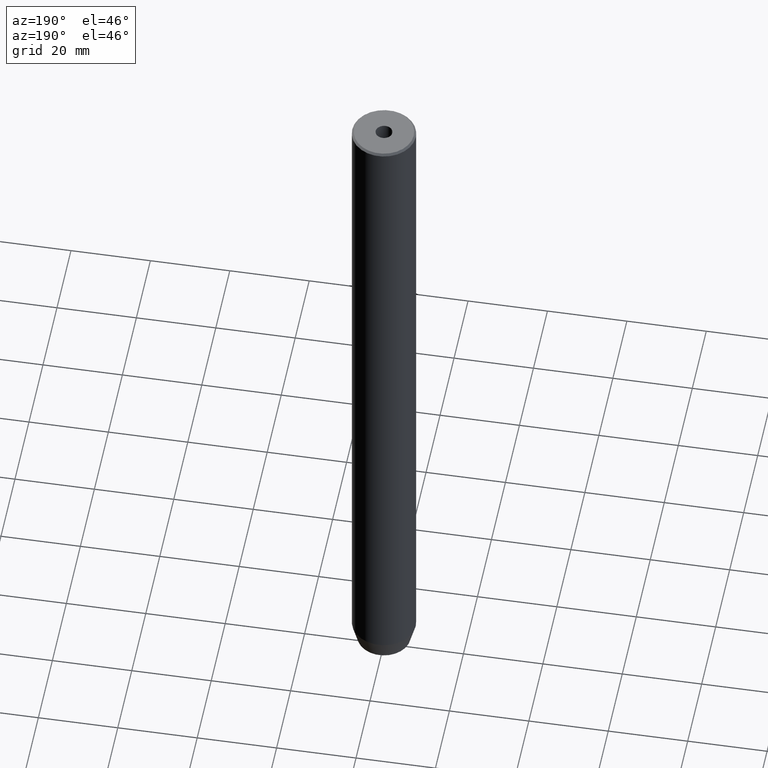
[diagram: clean part render]
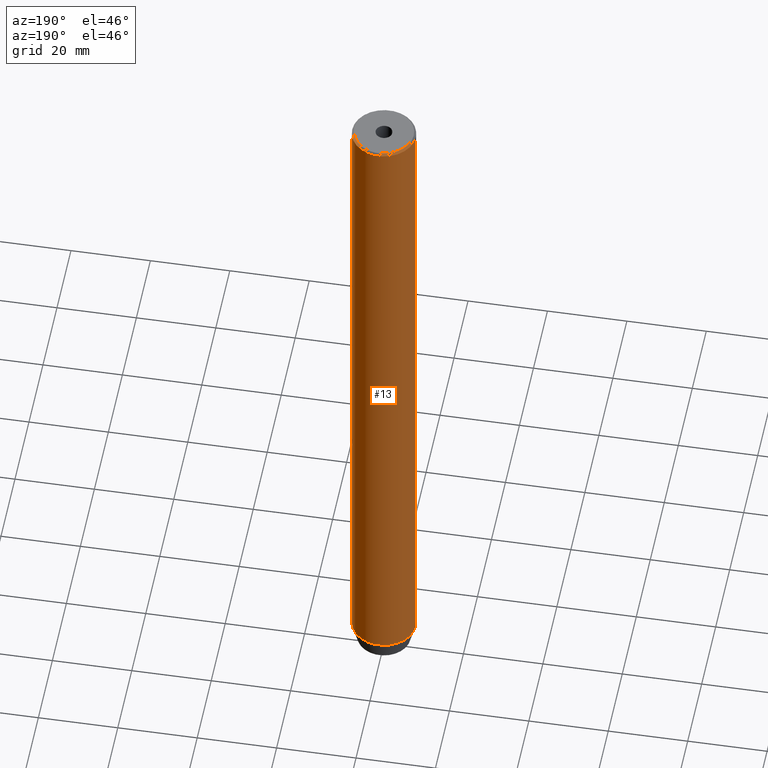
[diagram: same view with one face highlighted and labeled with its STEP entity id]
A machine part, auxiliary view. The second image highlights one B-rep face of the part: STEP entity #13.
In plain terms, the highlighted cylindrical surface (edge-blend (fillet) strip) has radius 8 mm, axis along (-0, -0, 1).
Its self-contained STEP definition (entity closure, byte-faithful):
#13 = ADVANCED_FACE ( 'NONE', ( #355 ), #20, .T. ) ;
#20 = CYLINDRICAL_SURFACE ( 'NONE', #223, 8.000000000000000000 ) ;
#55 = EDGE_CURVE ( 'NONE', #407, #511, #231, .T. ) ;
#70 = DIRECTION ( 'NONE',  ( 1.000000000000000000, 0.000000000000000000, 0.000000000000000000 ) ) ;
#74 = CARTESIAN_POINT ( 'NONE',  ( 0.000000000000000000, 0.000000000000000000, -0.4999999999999657496 ) ) ;
#109 = DIRECTION ( 'NONE',  ( 1.000000000000000000, 0.000000000000000000, 0.000000000000000000 ) ) ;
#139 = EDGE_CURVE ( 'NONE', #319, #547, #470, .T. ) ;
#162 = VECTOR ( 'NONE', #268, 1000.000000000000000 ) ;
#166 = CARTESIAN_POINT ( 'NONE',  ( 8.000000000000000000, 0.000000000000000000, 0.000000000000000000 ) ) ;
#171 = AXIS2_PLACEMENT_3D ( 'NONE', #74, #194, #202 ) ;
#187 = DIRECTION ( 'NONE',  ( -0.000000000000000000, -0.000000000000000000, 1.000000000000000000 ) ) ;
#194 = DIRECTION ( 'NONE',  ( 0.000000000000000000, 0.000000000000000000, -1.000000000000000000 ) ) ;
#202 = DIRECTION ( 'NONE',  ( 1.000000000000000000, 0.000000000000000000, 0.000000000000000000 ) ) ;
#223 = AXIS2_PLACEMENT_3D ( 'NONE', #282, #187, #109 ) ;
#224 = EDGE_CURVE ( 'NONE', #547, #407, #347, .T. ) ;
#231 = CIRCLE ( 'NONE', #171, 8.000000000000000000 ) ;
#242 = CARTESIAN_POINT ( 'NONE',  ( 8.000000000000000000, 0.000000000000000000, -0.4999999999999657496 ) ) ;
#267 = EDGE_CURVE ( 'NONE', #319, #511, #573, .T. ) ;
#268 = DIRECTION ( 'NONE',  ( -0.000000000000000000, -0.000000000000000000, 1.000000000000000000 ) ) ;
#273 = VECTOR ( 'NONE', #349, 1000.000000000000000 ) ;
#282 = CARTESIAN_POINT ( 'NONE',  ( 0.000000000000000000, 0.000000000000000000, 0.000000000000000000 ) ) ;
#318 = AXIS2_PLACEMENT_3D ( 'NONE', #457, #423, #70 ) ;
#319 = VERTEX_POINT ( 'NONE', #359 ) ;
#330 = ORIENTED_EDGE ( 'NONE', *, *, #267, .F. ) ;
#335 = CARTESIAN_POINT ( 'NONE',  ( -8.000000000000000000, 9.797174393178825657E-16, -175.0000000000000000 ) ) ;
#347 = LINE ( 'NONE', #435, #273 ) ;
#349 = DIRECTION ( 'NONE',  ( -0.000000000000000000, -0.000000000000000000, 1.000000000000000000 ) ) ;
#355 = FACE_OUTER_BOUND ( 'NONE', #518, .T. ) ;
#359 = CARTESIAN_POINT ( 'NONE',  ( 8.000000000000000000, 0.000000000000000000, -175.0000000000000000 ) ) ;
#361 = ORIENTED_EDGE ( 'NONE', *, *, #55, .T. ) ;
#363 = CARTESIAN_POINT ( 'NONE',  ( -8.000000000000000000, 9.797174393178825657E-16, -0.4999999999999657496 ) ) ;
#375 = ORIENTED_EDGE ( 'NONE', *, *, #224, .T. ) ;
#407 = VERTEX_POINT ( 'NONE', #363 ) ;
#423 = DIRECTION ( 'NONE',  ( -0.000000000000000000, -0.000000000000000000, 1.000000000000000000 ) ) ;
#435 = CARTESIAN_POINT ( 'NONE',  ( -8.000000000000000000, 9.797174393178825657E-16, 0.000000000000000000 ) ) ;
#457 = CARTESIAN_POINT ( 'NONE',  ( 0.000000000000000000, 0.000000000000000000, -175.0000000000000000 ) ) ;
#470 = CIRCLE ( 'NONE', #318, 8.000000000000000000 ) ;
#511 = VERTEX_POINT ( 'NONE', #242 ) ;
#518 = EDGE_LOOP ( 'NONE', ( #560, #375, #361, #330 ) ) ;
#547 = VERTEX_POINT ( 'NONE', #335 ) ;
#560 = ORIENTED_EDGE ( 'NONE', *, *, #139, .T. ) ;
#573 = LINE ( 'NONE', #166, #162 ) ;